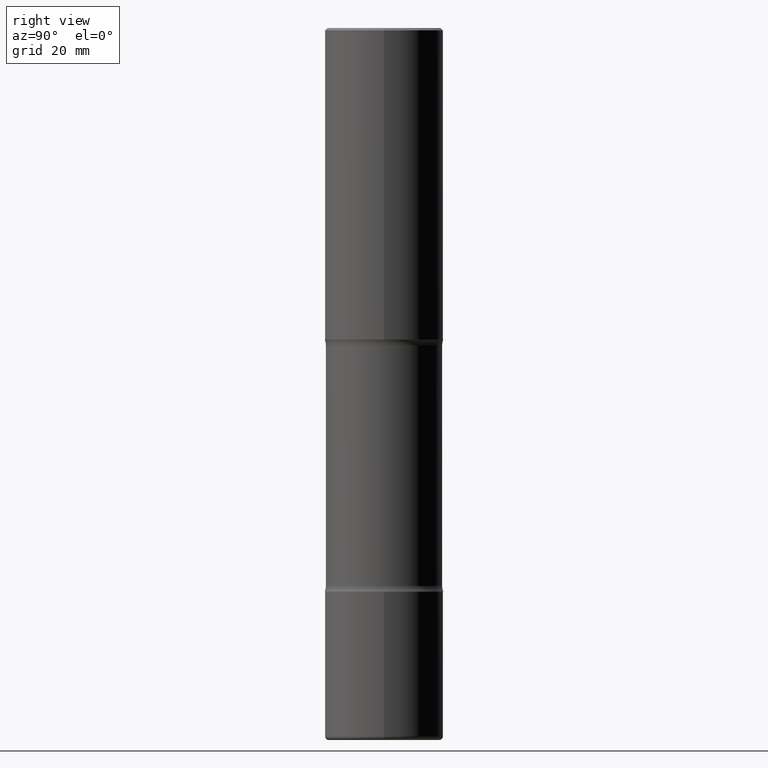
[diagram: clean part render]
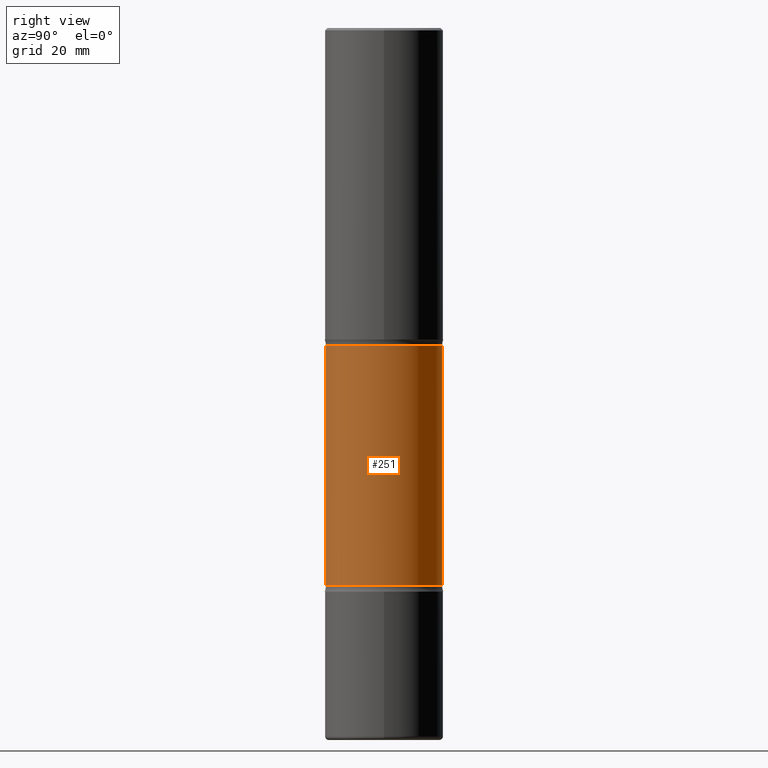
[diagram: same view with one face highlighted and labeled with its STEP entity id]
A machine part, right view. The second image highlights one B-rep face of the part: STEP entity #251.
In plain terms, the highlighted cylindrical surface (partial cylindrical patch) has radius 12.446 mm, axis along (0, -0, -1).
Its self-contained STEP definition (entity closure, byte-faithful):
#8 = AXIS2_PLACEMENT_3D ( 'NONE', #406, #235, #541 ) ;
#14 = CARTESIAN_POINT ( 'NONE',  ( 1.486357676291951651E-28, -2.067570323369244855E-14, -6.000000000000000888 ) ) ;
#24 = CARTESIAN_POINT ( 'NONE',  ( -3.395946508896794322E-15, -0.4900000000000163669, -4.701010205144333653 ) ) ;
#42 = ORIENTED_EDGE ( 'NONE', *, *, #57, .T. ) ;
#57 = EDGE_CURVE ( 'NONE', #549, #90, #141, .T. ) ;
#90 = VERTEX_POINT ( 'NONE', #91 ) ;
#91 = CARTESIAN_POINT ( 'NONE',  ( -3.395946508896849543E-15, -0.4900000000000100941, -2.673989794855663238 ) ) ;
#104 = CARTESIAN_POINT ( 'NONE',  ( 3.421651712066419546E-15, 0.4899999999999793965, -6.000000000000001776 ) ) ;
#126 = VECTOR ( 'NONE', #274, 39.37007874015748143 ) ;
#130 = DIRECTION ( 'NONE',  ( 6.982962677686265922E-15, 1.000000000000000000, -3.345119992241952764E-15 ) ) ;
#141 = CIRCLE ( 'NONE', #155, 0.4900000000000003242 ) ;
#155 = AXIS2_PLACEMENT_3D ( 'NONE', #441, #438, #130 ) ;
#156 = VECTOR ( 'NONE', #404, 39.37007874015748143 ) ;
#168 = ORIENTED_EDGE ( 'NONE', *, *, #439, .T. ) ;
#185 = VERTEX_POINT ( 'NONE', #24 ) ;
#198 = CARTESIAN_POINT ( 'NONE',  ( 3.421651712066385231E-15, 0.4899999999999835598, -4.701010205144337206 ) ) ;
#216 = EDGE_LOOP ( 'NONE', ( #42, #168, #362, #342 ) ) ;
#235 = DIRECTION ( 'NONE',  ( 2.598079946832093802E-29, -3.272933499350004525E-15, -1.000000000000000000 ) ) ;
#251 = ADVANCED_FACE ( 'NONE', ( #537 ), #375, .T. ) ;
#272 = DIRECTION ( 'NONE',  ( 6.982962677686266711E-15, 1.000000000000000000, -2.230079994827969693E-15 ) ) ;
#274 = DIRECTION ( 'NONE',  ( 2.598079946832093802E-29, -3.272933499350004525E-15, -1.000000000000000000 ) ) ;
#280 = CARTESIAN_POINT ( 'NONE',  ( 3.421651712066334744E-15, 0.4899999999999905542, -2.673989794855666347 ) ) ;
#286 = LINE ( 'NONE', #104, #156 ) ;
#333 = AXIS2_PLACEMENT_3D ( 'NONE', #14, #544, #272 ) ;
#342 = ORIENTED_EDGE ( 'NONE', *, *, #380, .F. ) ;
#353 = VERTEX_POINT ( 'NONE', #198 ) ;
#362 = ORIENTED_EDGE ( 'NONE', *, *, #554, .F. ) ;
#375 = CYLINDRICAL_SURFACE ( 'NONE', #333, 0.4900000000000001021 ) ;
#380 = EDGE_CURVE ( 'NONE', #549, #353, #286, .T. ) ;
#404 = DIRECTION ( 'NONE',  ( 2.598079946832093802E-29, -3.272933499350004525E-15, -1.000000000000000000 ) ) ;
#406 = CARTESIAN_POINT ( 'NONE',  ( 1.148869742576547963E-28, -1.642419601879555421E-14, -4.701010205144335430 ) ) ;
#436 = CIRCLE ( 'NONE', #8, 0.4899999999999999911 ) ;
#438 = DIRECTION ( 'NONE',  ( 2.598079946832093802E-29, -3.272933499350004525E-15, -1.000000000000000000 ) ) ;
#439 = EDGE_CURVE ( 'NONE', #90, #185, #489, .T. ) ;
#441 = CARTESIAN_POINT ( 'NONE',  ( 6.222336345975120465E-29, -9.789893014095570638E-15, -2.673989794855665014 ) ) ;
#489 = LINE ( 'NONE', #492, #126 ) ;
#492 = CARTESIAN_POINT ( 'NONE',  ( -3.361644018907902538E-15, -0.4900000000000208078, -5.999999999999999112 ) ) ;
#537 = FACE_OUTER_BOUND ( 'NONE', #216, .T. ) ;
#541 = DIRECTION ( 'NONE',  ( 6.982962677686265922E-15, 1.000000000000000000, -3.345119992241955130E-15 ) ) ;
#544 = DIRECTION ( 'NONE',  ( 2.598079946832093802E-29, -3.272933499350004525E-15, -1.000000000000000000 ) ) ;
#549 = VERTEX_POINT ( 'NONE', #280 ) ;
#554 = EDGE_CURVE ( 'NONE', #353, #185, #436, .T. ) ;